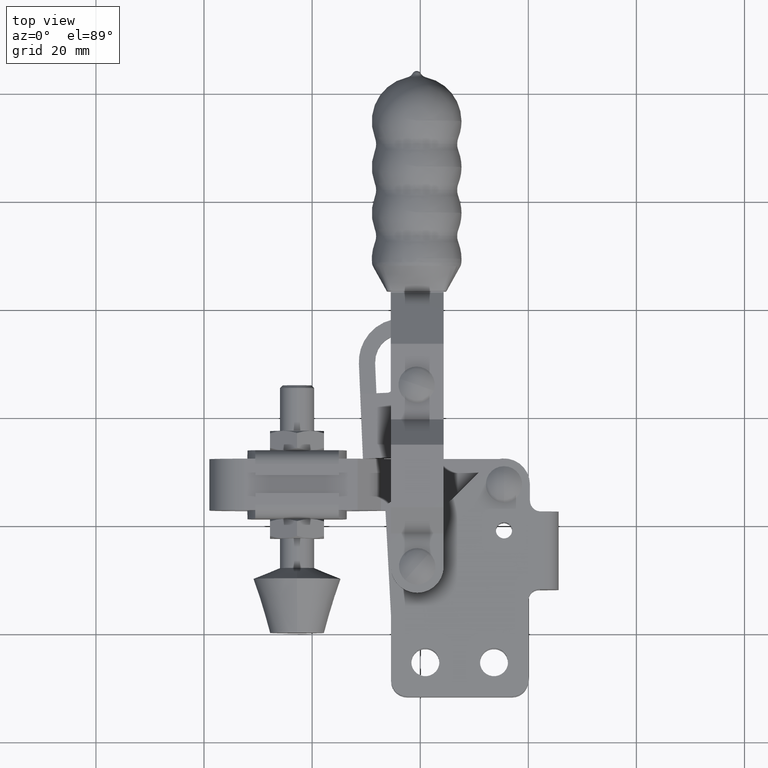
[diagram: clean part render]
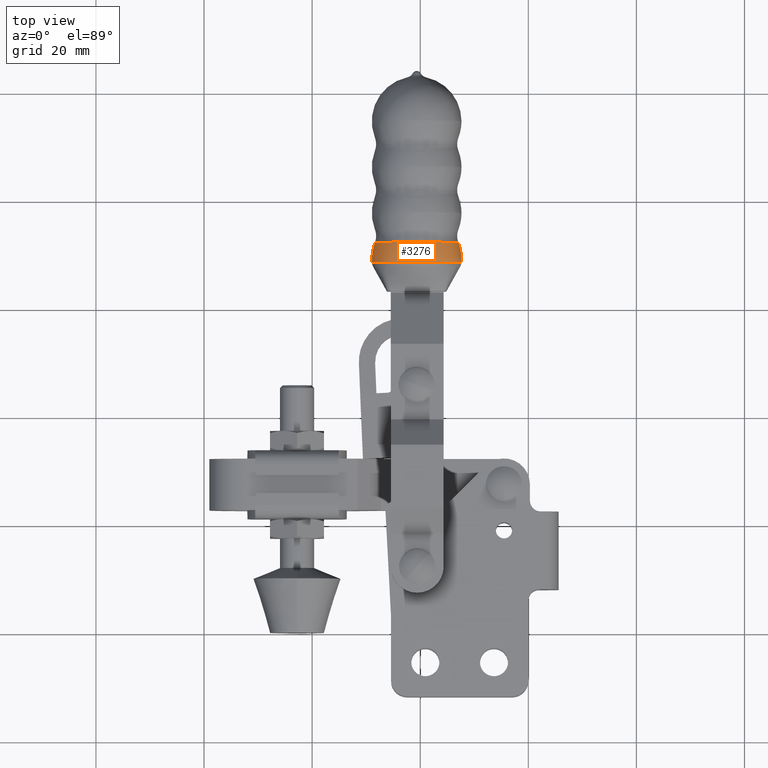
[diagram: same view with one face highlighted and labeled with its STEP entity id]
A machine part, top view. The second image highlights one B-rep face of the part: STEP entity #3276.
In plain terms, the highlighted spherical surface has radius 8.3 mm.
Its self-contained STEP definition (entity closure, byte-faithful):
#397 = CARTESIAN_POINT ( 'NONE',  ( -20.66037234350211800, 72.27122252702218900, -3.902946636443327500E-013 ) ) ;
#427 = AXIS2_PLACEMENT_3D ( 'NONE', #13067, #10645, #12673 ) ;
#725 = AXIS2_PLACEMENT_3D ( 'NONE', #8679, #9824, #8944 ) ;
#1047 = CARTESIAN_POINT ( 'NONE',  ( -20.66037234350212200, 69.25344415514675200, -3.902946636443326500E-013 ) ) ;
#1122 = CIRCLE ( 'NONE', #2926, 8.300000000000002500 ) ;
#1399 = VERTEX_POINT ( 'NONE', #9185 ) ;
#1458 = DIRECTION ( 'NONE',  ( -1.000000000000000000, 0.0000000000000000000, 0.0000000000000000000 ) ) ;
#2081 = EDGE_LOOP ( 'NONE', ( #12552, #7226, #9922, #7969 ) ) ;
#2131 = DIRECTION ( 'NONE',  ( 1.000000000000000000, 0.0000000000000000000, 0.0000000000000000000 ) ) ;
#2617 = DIRECTION ( 'NONE',  ( 1.224646799147352200E-016, 3.824821402262552700E-032, -1.000000000000000000 ) ) ;
#2786 = FACE_OUTER_BOUND ( 'NONE', #2081, .T. ) ;
#2926 = AXIS2_PLACEMENT_3D ( 'NONE', #6526, #2617, #12845 ) ;
#2988 = VERTEX_POINT ( 'NONE', #4804 ) ;
#3276 = ADVANCED_FACE ( 'NONE', ( #2786 ), #7248, .T. ) ;
#3649 = EDGE_CURVE ( 'NONE', #11578, #1399, #1122, .T. ) ;
#3665 = AXIS2_PLACEMENT_3D ( 'NONE', #397, #7604, #1458 ) ;
#3803 = CIRCLE ( 'NONE', #725, 8.269472234700860000 ) ;
#4804 = CARTESIAN_POINT ( 'NONE',  ( -12.39090010880125600, 68.54222762024929200, -3.892819453740462400E-013 ) ) ;
#5707 = CIRCLE ( 'NONE', #427, 8.300000000000002500 ) ;
#6174 = AXIS2_PLACEMENT_3D ( 'NONE', #1047, #11295, #2131 ) ;
#6526 = CARTESIAN_POINT ( 'NONE',  ( -20.66037234350212200, 69.25344415514675200, -3.902946636443326500E-013 ) ) ;
#7226 = ORIENTED_EDGE ( 'NONE', *, *, #7676, .T. ) ;
#7248 = SPHERICAL_SURFACE ( 'NONE', #6174, 8.300000000000002500 ) ;
#7389 = CARTESIAN_POINT ( 'NONE',  ( -28.92984457820297500, 68.54222762024929200, -3.902946636443326500E-013 ) ) ;
#7593 = VERTEX_POINT ( 'NONE', #9656 ) ;
#7604 = DIRECTION ( 'NONE',  ( -1.110223024625156800E-016, 1.000000000000000000, 2.465190328815662400E-032 ) ) ;
#7676 = EDGE_CURVE ( 'NONE', #11578, #2988, #3803, .T. ) ;
#7838 = EDGE_CURVE ( 'NONE', #2988, #7593, #5707, .T. ) ;
#7969 = ORIENTED_EDGE ( 'NONE', *, *, #11740, .F. ) ;
#8679 = CARTESIAN_POINT ( 'NONE',  ( -20.66037234350211400, 68.54222762024929200, -3.902946636443327500E-013 ) ) ;
#8944 = DIRECTION ( 'NONE',  ( -1.000000000000000000, 0.0000000000000000000, 0.0000000000000000000 ) ) ;
#9185 = CARTESIAN_POINT ( 'NONE',  ( -28.39231994409027800, 72.27122252702218900, -3.912744680234876400E-013 ) ) ;
#9656 = CARTESIAN_POINT ( 'NONE',  ( -12.92842474291396100, 72.27122252702218900, -3.902946636443326500E-013 ) ) ;
#9824 = DIRECTION ( 'NONE',  ( -1.110223024625156800E-016, 1.000000000000000000, 2.465190328815662400E-032 ) ) ;
#9922 = ORIENTED_EDGE ( 'NONE', *, *, #7838, .T. ) ;
#10591 = CIRCLE ( 'NONE', #3665, 7.731947600588155100 ) ;
#10645 = DIRECTION ( 'NONE',  ( 6.162975822039155800E-032, -2.465190328815661900E-032, 1.000000000000000000 ) ) ;
#11295 = DIRECTION ( 'NONE',  ( 0.0000000000000000000, 2.465190328815662400E-032, -1.000000000000000000 ) ) ;
#11578 = VERTEX_POINT ( 'NONE', #7389 ) ;
#11740 = EDGE_CURVE ( 'NONE', #1399, #7593, #10591, .T. ) ;
#12552 = ORIENTED_EDGE ( 'NONE', *, *, #3649, .F. ) ;
#12673 = DIRECTION ( 'NONE',  ( 1.000000000000000000, 0.0000000000000000000, 0.0000000000000000000 ) ) ;
#12845 = DIRECTION ( 'NONE',  ( -1.000000000000000000, 0.0000000000000000000, -1.224646799147336700E-016 ) ) ;
#13067 = CARTESIAN_POINT ( 'NONE',  ( -20.66037234350212200, 69.25344415514675200, -3.902946636443326500E-013 ) ) ;